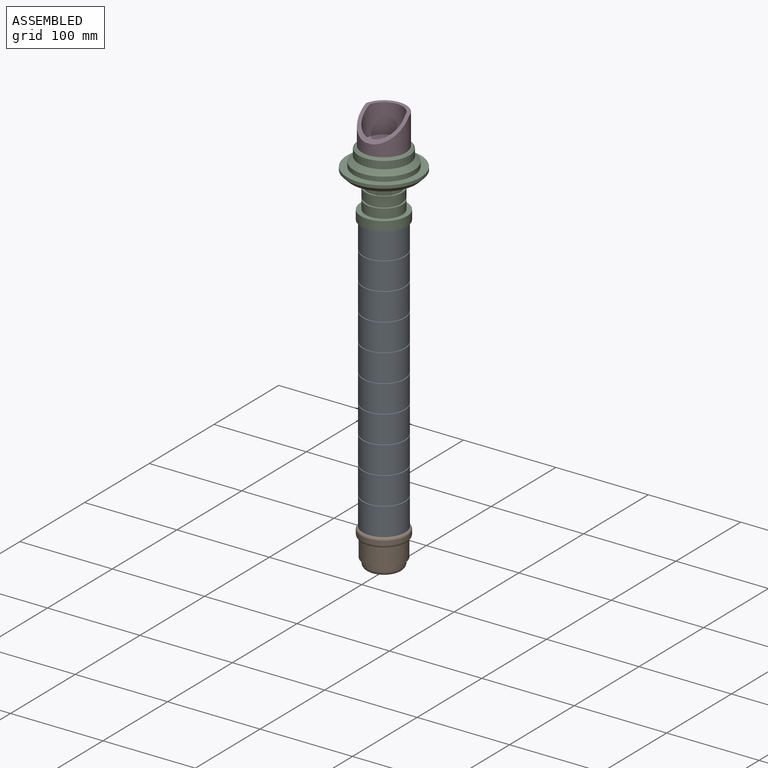
[diagram: assembled view]
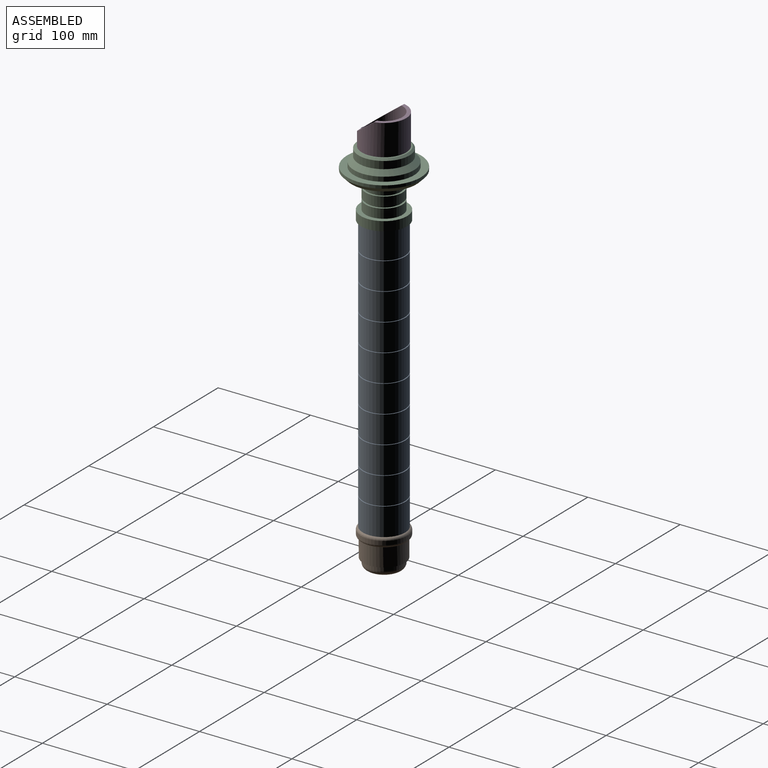
[diagram: assembled view, second angle]
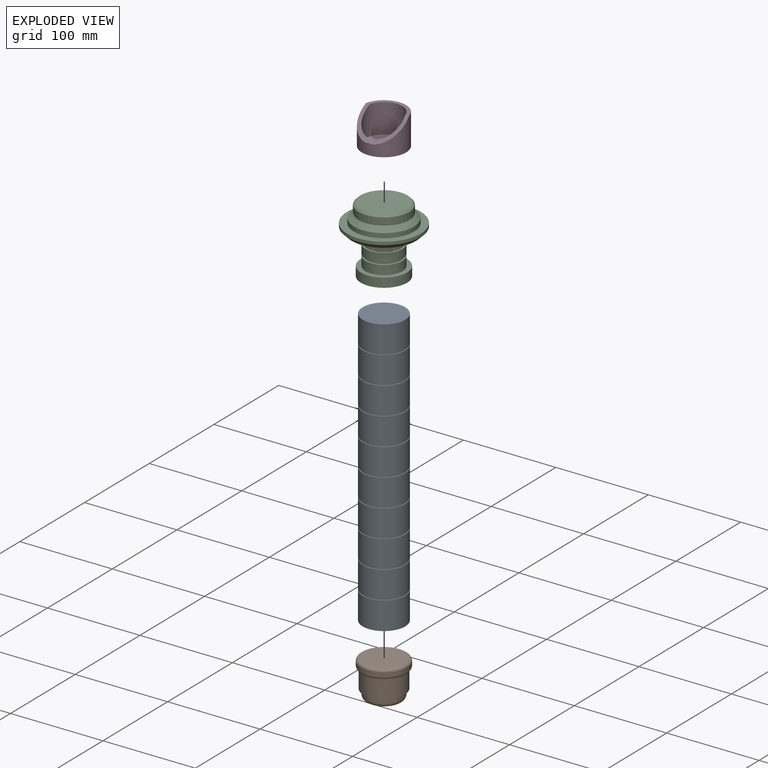
[diagram: exploded view]
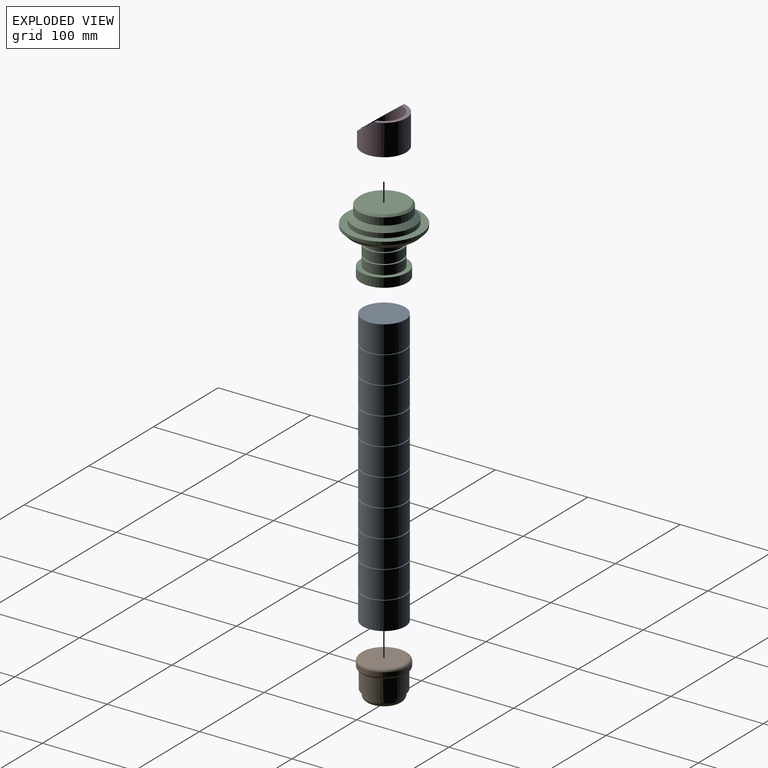
[diagram: exploded view, second angle]
ASSEMBLY  parts=4 mates=3
PART A: 39 faces, bbox 46x46x300 mm
  f0: cylinder r=22mm len=44mm, axis (0,0,-1), area 138.2mm2, adj f1,f38
  f1: plane 46x46mm, normal (0,0,-1), area 141.4mm2, adj f0,f2
  f2: cylinder r=23mm len=46mm, axis (0,0,-1), area 4190.9mm2, adj f1,f3
  f3: plane 46x46mm, normal (0,0,1), area 141.4mm2, adj f2,f4
  f4: cylinder r=22mm len=44mm, axis (0,0,-1), area 138.2mm2, adj f3,f5
  f5: plane 46x46mm, normal (0,0,-1), area 141.4mm2, adj f4,f6
  f6: cylinder r=23mm len=46mm, axis (0,0,-1), area 4190.9mm2, adj f5,f7
  f7: plane 46x46mm, normal (0,0,1), area 141.4mm2, adj f6,f8
  f8: cylinder r=22mm len=44mm, axis (0,0,-1), area 138.2mm2, adj f7,f9
  f9: plane 46x46mm, normal (0,0,-1), area 141.4mm2, adj f8,f10
  f10: cylinder r=23mm len=46mm, axis (0,0,-1), area 4190.9mm2, adj f9,f11
  f11: plane 46x46mm, normal (0,0,1), area 141.4mm2, adj f10,f12
  f12: cylinder r=22mm len=44mm, axis (0,0,-1), area 138.2mm2, adj f11,f13
  f13: plane 46x46mm, normal (0,0,-1), area 141.4mm2, adj f12,f14
  f14: cylinder r=23mm len=46mm, axis (0,0,-1), area 4190.9mm2, adj f13,f15
  f15: plane 46x46mm, normal (0,0,1), area 141.4mm2, adj f14,f16
  f16: cylinder r=22mm len=44mm, axis (0,0,-1), area 138.2mm2, adj f15,f17
  f17: plane 46x46mm, normal (0,0,-1), area 141.4mm2, adj f16,f18
  f18: cylinder r=23mm len=46mm, axis (0,0,-1), area 4190.9mm2, adj f17,f19
  f19: plane 46x46mm, normal (0,0,1), area 141.4mm2, adj f18,f20
  f20: cylinder r=22mm len=44mm, axis (0,0,-1), area 138.2mm2, adj f19,f21
  f21: plane 46x46mm, normal (0,0,-1), area 141.4mm2, adj f20,f22
  f22: cylinder r=23mm len=46mm, axis (0,0,-1), area 4190.9mm2, adj f21,f23
  f23: plane 46x46mm, normal (0,0,1), area 141.4mm2, adj f22,f24
  f24: cylinder r=22mm len=44mm, axis (0,0,-1), area 138.2mm2, adj f23,f25
  f25: plane 46x46mm, normal (0,0,-1), area 141.4mm2, adj f24,f26
  f26: cylinder r=23mm len=46mm, axis (0,0,-1), area 4190.9mm2, adj f25,f27
  f27: plane 46x46mm, normal (0,0,1), area 1661.9mm2, adj f26
  f28: plane 46x46mm, normal (0,0,-1), area 1661.9mm2, adj f29
  f29: cylinder r=23mm len=46mm, axis (0,0,-1), area 4335.4mm2, adj f28,f30
  f30: plane 46x46mm, normal (0,0,1), area 141.4mm2, adj f29,f31
  f31: cylinder r=22mm len=44mm, axis (0,0,-1), area 138.2mm2, adj f30,f32
  f32: plane 46x46mm, normal (0,0,-1), area 141.4mm2, adj f31,f33
  f33: cylinder r=23mm len=46mm, axis (0,0,-1), area 4190.9mm2, adj f32,f34
  f34: plane 46x46mm, normal (0,0,1), area 141.4mm2, adj f33,f35
  f35: cylinder r=22mm len=44mm, axis (0,0,-1), area 138.2mm2, adj f34,f36
  f36: plane 46x46mm, normal (0,0,-1), area 141.4mm2, adj f35,f37
  f37: cylinder r=23mm len=46mm, axis (0,0,-1), area 4190.9mm2, adj f36,f38
  f38: plane 46x46mm, normal (0,0,1), area 141.4mm2, adj f0,f37
PART B: 9 faces, bbox 54.1x54.1x40 mm
  f0: cylinder r=20mm len=40mm, axis (0,0,-1), area 628.3mm2, adj f3,f8
  f1: plane 30x30mm, normal (0,0,-1), area 706.9mm2, adj f8
  f2: cylinder r=22.5mm len=45mm, axis (0,0,-1), area 2827.4mm2, adj f3,f6
  f3: plane 45x45mm, normal (0,0,-1), area 333.8mm2, adj f0,f2
  f4: cylinder r=25mm len=50mm, axis (0,0,-1), area 634.9mm2, adj f6,f7
  f5: plane 44x44mm, normal (0,0,1), area 1520.5mm2, adj f7
  f6: torus R=22mm, axis (0,0,-1), area 637.7mm2, adj f2,f4
  f7: torus R=22mm, axis (0,0,1), area 707.9mm2, adj f4,f5
  f8: torus R=15mm, axis (0,0,1), area 897.3mm2, adj f0,f1
PART C: 21 faces, bbox 80x80x72 mm
  f0: plane 40x40mm, normal (0,0,-1), area 238.8mm2, adj f1,f14
  f1: cylinder r=20mm len=40mm, axis (0,0,1), area 1223mm2, adj f0,f2
  f2: plane 40x40mm, normal (0,0,1), area 238.8mm2, adj f1,f3
  f3: cylinder r=18mm len=36mm, axis (0,0,1), area 226.2mm2, adj f2,f4
  f4: plane 40x40mm, normal (0,0,-1), area 238.8mm2, adj f3,f5
  f5: cylinder r=20mm len=40mm, axis (0,0,1), area 1256.6mm2, adj f4,f6
  f6: plane 70x70mm, normal (0,0,-1), area 2591.8mm2, adj f5,f15
  f7: cylinder r=40mm len=80mm, axis (0,0,1), area 821.2mm2, adj f8,f15
  f8: plane 80x80mm, normal (0,0,1), area 1708.2mm2, adj f7,f16
  f9: plane 50x50mm, normal (0,0,-1), area 1963.5mm2, adj f10
  f10: cylinder r=25mm len=50mm, axis (0,0,1), area 1570.8mm2, adj f9,f11
  f11: plane 50x50mm, normal (0,0,1), area 706.9mm2, adj f10,f12
  f12: cylinder r=20mm len=40mm, axis (0,0,1), area 1256.6mm2, adj f11,f13
  f13: plane 40x40mm, normal (0,0,1), area 238.8mm2, adj f12,f14
  f14: cylinder r=18mm len=36mm, axis (0,0,1), area 226.2mm2, adj f0,f13
  f15: cone r=40mm half-angle=45deg, axis (0,0,1), area 1666.1mm2, adj f6,f7
  f16: cylinder r=32.5mm len=65mm, axis (0,0,-1), area 1021mm2, adj f8,f19
  f17: cylinder r=27.5mm len=55mm, axis (0,0,-1), area 1382.3mm2, adj f19,f20
  f18: plane 51x51mm, normal (0,0,1), area 2042.8mm2, adj f20
  f19: cone r=27.5mm half-angle=45deg, axis (0,0,-1), area 1332.9mm2, adj f16,f17
  f20: cone r=25.5mm half-angle=45deg, axis (0,0,-1), area 470.9mm2, adj f17,f18
PART D: 7 faces, bbox 48x48x33.6 mm
  f0: cylinder r=20mm len=40mm, axis (0,0,-1), area 3077.3mm2, adj f4,f5,f6
  f1: cylinder r=24mm len=48mm, axis (0,0,-1), area 3855.5mm2, adj f2,f3,f4,f5
  f2: plane 48x48mm, normal (0,0,-1), area 1809.6mm2, adj f1
  f3: plane 4.89x0.36mm, normal (0,0.95,0.33), area 1.3mm2, adj f1,f4
  f4: plane 48x29.38mm, normal (0,-0.6,0.8), area 401.6mm2, adj f0,f1,f3,f5
  f5: plane 46.72x18.5mm, normal (0,0,1), area 232mm2, adj f0,f1,f4
  f6: plane 40x40mm, normal (0,0,1), area 1256.6mm2, adj f0
PLACE A t=(-38.04,3.06,-112.46)mm
PLACE B t=(-38.04,3.06,-152.46)mm
PLACE C t=(-38.04,28.06,187.54)mm
PLACE D t=(-38.04,27.06,259.54)mm
MATE fastened C.f1 <-> A.f0  axis (0,0,-1) through (-38.04,3.06,187.54)mm
MATE fastened D.f1 <-> C.f1  axis (0,0,-1) through (-38.04,3.06,259.54)mm
MATE fastened B.f4 <-> A.f0  axis (0,0,1) through (-38.04,3.06,-112.46)mm
